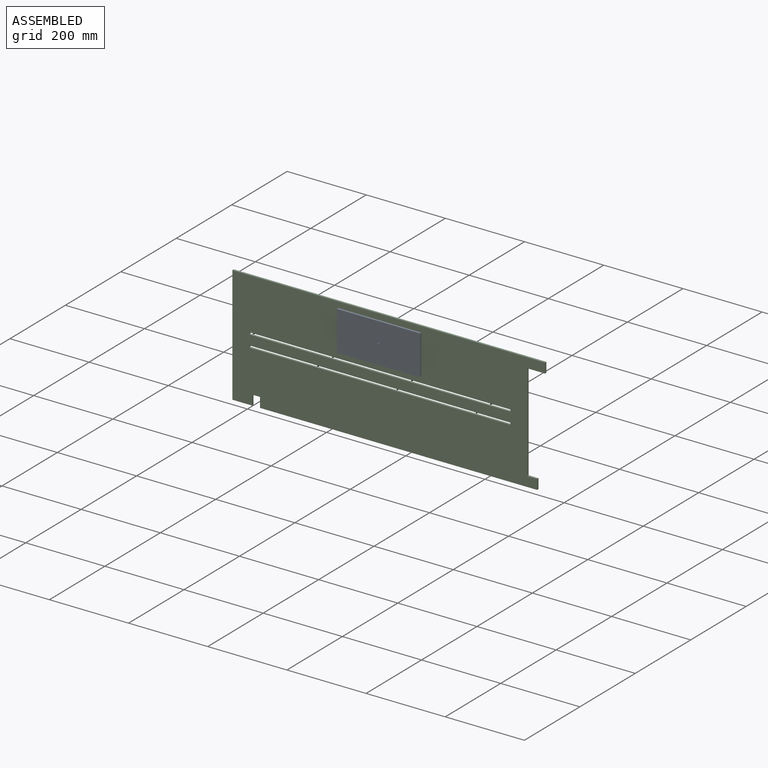
[diagram: assembled view]
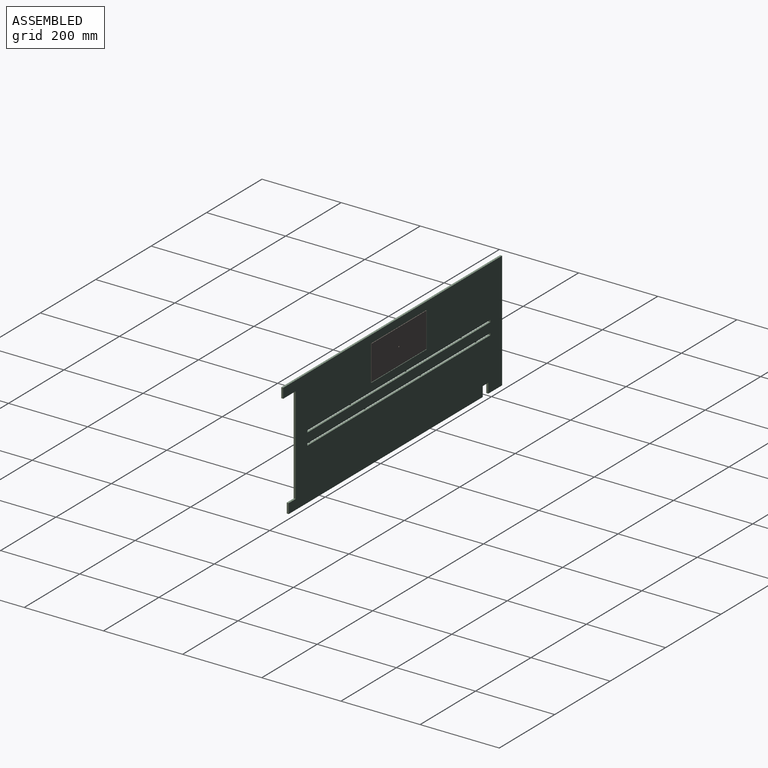
[diagram: assembled view, second angle]
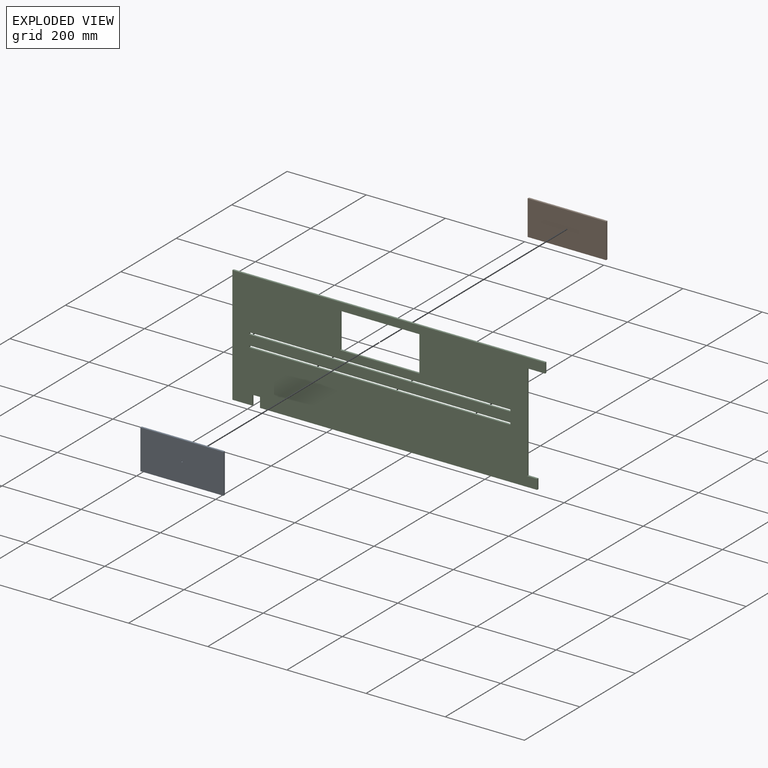
[diagram: exploded view]
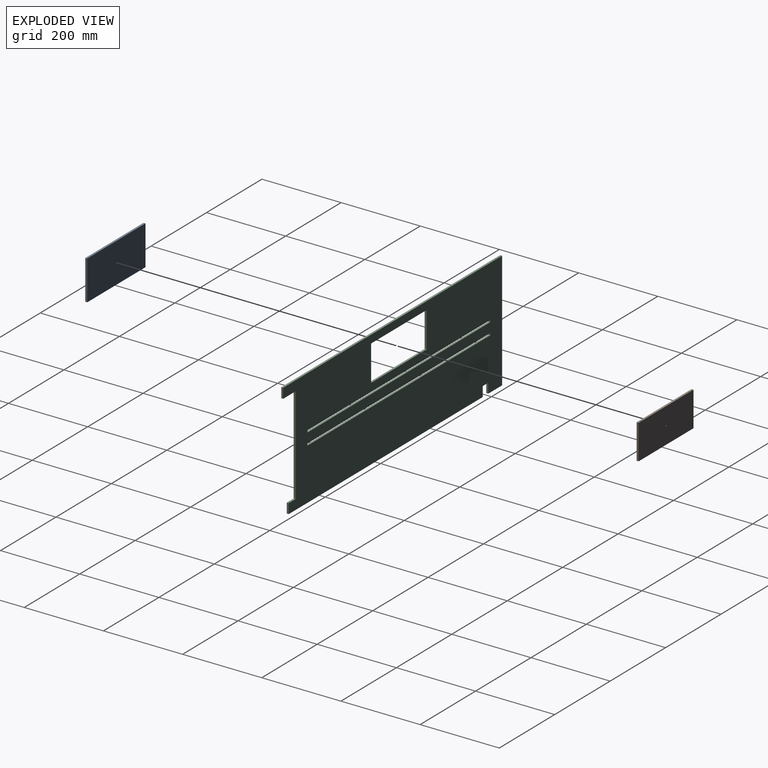
[diagram: exploded view, second angle]
ASSEMBLY  parts=3 mates=2
PART A: 7 faces, bbox 210x5x100 mm
  f0: plane 210x5mm, normal (0,0,-1), area 1050mm2, adj f1,f3,f4,f5
  f1: plane 100x5mm, normal (1,0,0), area 500mm2, adj f0,f2,f4,f5
  f2: plane 210x5mm, normal (0,0,1), area 1050mm2, adj f1,f3,f4,f5
  f3: plane 100x5mm, normal (-1,0,0), area 500mm2, adj f0,f2,f4,f5
  f4: plane 210x100mm, normal (0,-1,0), area 20992.9mm2, adj f0,f1,f2,f3,f6
  f5: plane 210x100mm, normal (0,1,0), area 20992.9mm2, adj f0,f1,f2,f3,f6
  f6: cylinder r=1.5mm len=5mm, axis (0,-1,0), area 47.1mm2, adj f4,f5
PART B: 7 faces, bbox 198x5x88 mm
  f0: plane 198x5mm, normal (0,0,-1), area 990mm2, adj f1,f3,f4,f5
  f1: plane 88x5mm, normal (1,0,0), area 440mm2, adj f0,f2,f4,f5
  f2: plane 198x5mm, normal (0,0,1), area 990mm2, adj f1,f3,f4,f5
  f3: plane 88x5mm, normal (-1,0,0), area 440mm2, adj f0,f2,f4,f5
  f4: plane 198x88mm, normal (0,-1,0), area 17416.9mm2, adj f0,f1,f2,f3,f6
  f5: plane 198x88mm, normal (0,1,0), area 17416.9mm2, adj f0,f1,f2,f3,f6
  f6: cylinder r=1.5mm len=5mm, axis (0,-1,0), area 47.1mm2, adj f4,f5
PART C: 26 faces, bbox 790x5x296 mm
  f0: plane 25x5mm, normal (1,0,0), area 125mm2, adj f1,f11,f12,f13
  f1: plane 50x5mm, normal (0,0,1), area 250mm2, adj f0,f2,f12,f13
  f2: plane 296x5mm, normal (-1,0,0), area 1480mm2, adj f1,f3,f12,f13
  f3: plane 790x5mm, normal (0,0,-1), area 3950mm2, adj f2,f4,f12,f13
  f4: plane 25x5mm, normal (1,0,0), area 125mm2, adj f3,f5,f12,f13
  f5: plane 45x5mm, normal (0,0,1), area 225mm2, adj f4,f6,f12,f13
  f6: plane 246x5mm, normal (1,0,0), area 1230mm2, adj f5,f7,f12,f13
  f7: plane 25x5mm, normal (0,0,-1), area 125mm2, adj f6,f8,f12,f13
  f8: plane 25x5mm, normal (1,0,0), area 125mm2, adj f7,f9,f12,f13
  f9: plane 700x5mm, normal (0,0,1), area 3500mm2, adj f8,f10,f12,f13
  f10: plane 25x5mm, normal (-1,0,0), area 125mm2, adj f9,f11,f12,f13
  f11: plane 20x5mm, normal (0,0,1), area 100mm2, adj f0,f10,f12,f13
  f12: plane 790x296mm, normal (0,-1,0), area 197170mm2, adj f0,f1,f2,f3,f4,f5,f6,f7
  f13: plane 790x296mm, normal (0,1,0), area 197170mm2, adj f0,f1,f2,f3,f4,f5,f6,f7
  f14: plane 5x5mm, normal (1,0,0), area 25mm2, adj f12,f13,f15,f16
  f15: plane 660x5mm, normal (0,0,-1), area 3300mm2, adj f12,f13,f14,f17
  f16: plane 660x5mm, normal (0,0,1), area 3300mm2, adj f12,f13,f14,f17
  f17: plane 5x5mm, normal (-1,0,0), area 25mm2, adj f12,f13,f15,f16
  f18: plane 5x5mm, normal (1,0,0), area 25mm2, adj f12,f13,f19,f20
  f19: plane 660x5mm, normal (0,0,-1), area 3300mm2, adj f12,f13,f18,f21
  f20: plane 660x5mm, normal (0,0,1), area 3300mm2, adj f12,f13,f18,f21
  f21: plane 5x5mm, normal (-1,0,0), area 25mm2, adj f12,f13,f19,f20
  f22: plane 90x5mm, normal (1,0,0), area 450mm2, adj f12,f13,f23,f24
  f23: plane 200x5mm, normal (0,0,-1), area 1000mm2, adj f12,f13,f22,f25
  f24: plane 200x5mm, normal (0,0,1), area 1000mm2, adj f12,f13,f22,f25
  f25: plane 90x5mm, normal (-1,0,0), area 450mm2, adj f12,f13,f23,f24
PLACE A rot(axis=(-1,0,0),180deg) t=(136.59,-8.11,-31.14)mm
PLACE B t=(136.59,1.89,-31.14)mm
PLACE C rot(axis=(1,0,0),180deg) t=(159.09,-3.09,-114.14)mm
MATE slider A.f4 <-> C.f12  axis (0,1,0) through (31.59,-3.11,-81.14)mm
MATE fastened A.f6 <-> B.f6  axis (0,1,0) through (136.59,-3.11,-31.14)mm
